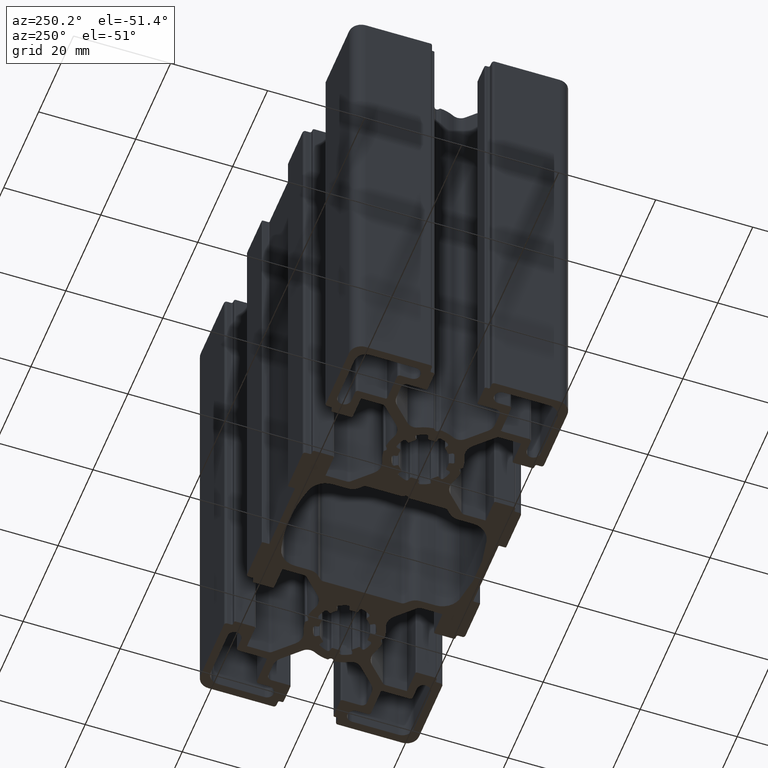
[diagram: clean part render]
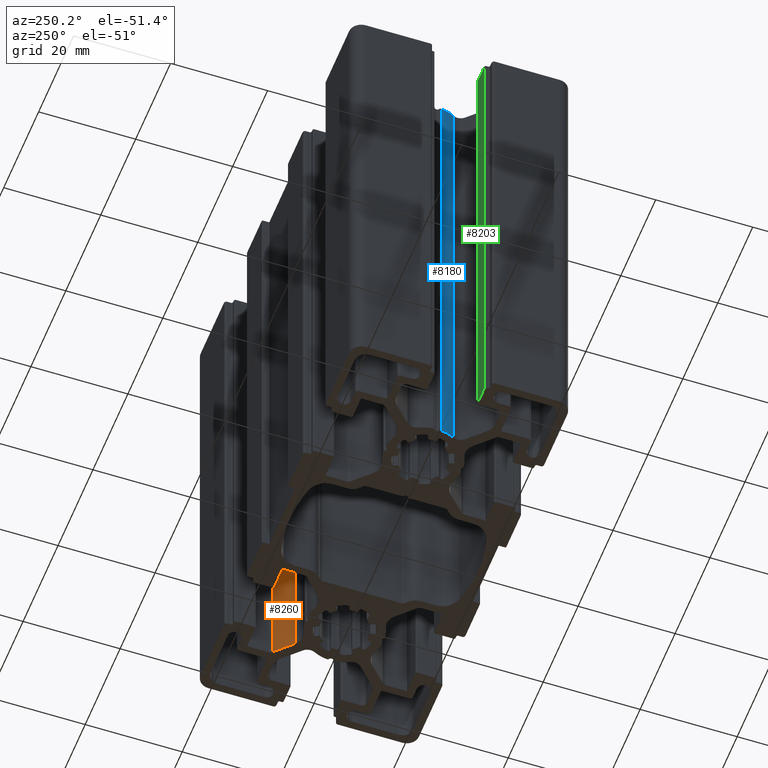
[diagram: same view with three faces highlighted in distinct colors, each labeled with its STEP entity id]
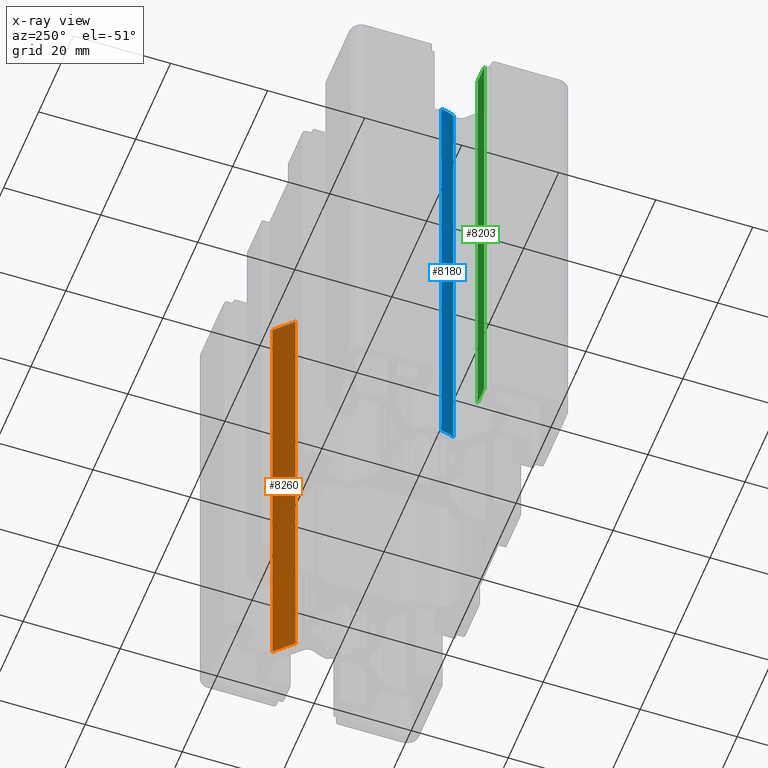
[diagram: x-ray of the same camera — body ghosted, the three highlighted faces saturated]
A machine part, auxiliary view with three faces highlighted in distinct colors.
The next image is the same camera in x-ray (body ghosted, the three faces saturated) — at least one of them is partly hidden behind the body in this view.
Their STEP definitions:

[orange] entity #8260 — the highlighted planar face has unit normal (0.7071, -0.7071, 0).
#1125=FACE_OUTER_BOUND('',#1547,.T.);
#1547=EDGE_LOOP('',(#6550,#6551,#6552,#6553));
#2245=LINE('',#13891,#2991);
#2246=LINE('',#13895,#2992);
#2247=LINE('',#13897,#2993);
#2248=LINE('',#13898,#2994);
#2991=VECTOR('',#11324,100.);
#2992=VECTOR('',#11329,4.96882945190269);
#2993=VECTOR('',#11330,100.);
#2994=VECTOR('',#11331,4.96882945190269);
#3816=VERTEX_POINT('',#13888);
#3817=VERTEX_POINT('',#13890);
#3818=VERTEX_POINT('',#13894);
#3819=VERTEX_POINT('',#13896);
#4972=EDGE_CURVE('',#3817,#3816,#2245,.T.);
#4974=EDGE_CURVE('',#3818,#3816,#2246,.T.);
#4975=EDGE_CURVE('',#3819,#3818,#2247,.T.);
#4976=EDGE_CURVE('',#3817,#3819,#2248,.T.);
#6550=ORIENTED_EDGE('',*,*,#4974,.F.);
#6551=ORIENTED_EDGE('',*,*,#4975,.F.);
#6552=ORIENTED_EDGE('',*,*,#4976,.F.);
#6553=ORIENTED_EDGE('',*,*,#4972,.T.);
#7897=PLANE('',#9080);
#8260=ADVANCED_FACE('',(#1125),#7897,.F.);
#9080=AXIS2_PLACEMENT_3D('',#13893,#11327,#11328);
#11324=DIRECTION('',(0.,0.,1.));
#11327=DIRECTION('center_axis',(0.707106781186549,-0.707106781186546,0.));
#11328=DIRECTION('ref_axis',(0.707106781186546,0.707106781186549,0.));
#11329=DIRECTION('',(-0.707106781186546,-0.707106781186549,0.));
#11330=DIRECTION('',(0.,0.,1.));
#11331=DIRECTION('',(0.707106781186546,0.707106781186549,0.));
#13888=CARTESIAN_POINT('',(28.8436155328533,7.88506667469979,100.));
#13890=CARTESIAN_POINT('',(28.8436155328533,7.88506667469979,0.));
#13891=CARTESIAN_POINT('',(28.8436155328533,7.88506667469979,0.));
#13893=CARTESIAN_POINT('Origin',(28.8436155328533,7.88506667469979,0.));
#13894=CARTESIAN_POINT('',(32.3571085328531,11.3985596746996,100.));
#13895=CARTESIAN_POINT('',(19.6614449809651,-1.2971038771885,100.));
#13896=CARTESIAN_POINT('',(32.3571085328531,11.3985596746996,0.));
#13897=CARTESIAN_POINT('',(32.3571085328531,11.3985596746996,0.));
#13898=CARTESIAN_POINT('',(19.6614449809651,-1.2971038771885,0.));

[blue] entity #8180 — the highlighted cylindrical surface (partial cylindrical patch) has radius 8 mm, axis along (0, 0, 1).
#327=CIRCLE('',#8903,8.);
#328=CIRCLE('',#8904,8.);
#692=CYLINDRICAL_SURFACE('',#8902,8.);
#1045=FACE_OUTER_BOUND('',#1467,.T.);
#1467=EDGE_LOOP('',(#6230,#6231,#6232,#6233));
#2100=LINE('',#13402,#2846);
#2101=LINE('',#13408,#2847);
#2846=VECTOR('',#10823,100.);
#2847=VECTOR('',#10830,100.);
#3650=VERTEX_POINT('',#13399);
#3651=VERTEX_POINT('',#13401);
#3652=VERTEX_POINT('',#13405);
#3653=VERTEX_POINT('',#13407);
#4729=EDGE_CURVE('',#3651,#3650,#2100,.T.);
#4731=EDGE_CURVE('',#3652,#3650,#327,.T.);
#4732=EDGE_CURVE('',#3653,#3652,#2101,.T.);
#4733=EDGE_CURVE('',#3651,#3653,#328,.T.);
#6230=ORIENTED_EDGE('',*,*,#4731,.F.);
#6231=ORIENTED_EDGE('',*,*,#4732,.F.);
#6232=ORIENTED_EDGE('',*,*,#4733,.F.);
#6233=ORIENTED_EDGE('',*,*,#4729,.T.);
#8180=ADVANCED_FACE('',(#1045),#692,.T.);
#8902=AXIS2_PLACEMENT_3D('',#13404,#10826,#10827);
#8903=AXIS2_PLACEMENT_3D('',#13406,#10828,#10829);
#8904=AXIS2_PLACEMENT_3D('',#13409,#10831,#10832);
#10823=DIRECTION('',(0.,0.,1.));
#10826=DIRECTION('center_axis',(0.,0.,1.));
#10827=DIRECTION('ref_axis',(0.994654605649788,0.103258004337024,0.));
#10828=DIRECTION('center_axis',(0.,0.,1.));
#10829=DIRECTION('ref_axis',(0.994654605649788,0.103258004337024,0.));
#10830=DIRECTION('',(0.,0.,1.));
#10831=DIRECTION('center_axis',(0.,0.,-1.));
#10832=DIRECTION('ref_axis',(0.994654605649788,0.103258004337024,0.));
#13399=CARTESIAN_POINT('',(-29.6318083593139,-3.62454200659333,100.));
#13401=CARTESIAN_POINT('',(-29.6318083593139,-3.62454200659333,0.));
#13402=CARTESIAN_POINT('',(-29.6318083593139,-3.62454200659333,0.));
#13404=CARTESIAN_POINT('Origin',(-22.4999994754484,-3.74329118812966E-7,
0.));
#13405=CARTESIAN_POINT('',(-30.4572363206467,-0.826064409025307,100.));
#13406=CARTESIAN_POINT('Origin',(-22.4999994754484,-3.74329118812966E-7,
100.));
#13407=CARTESIAN_POINT('',(-30.4572363206467,-0.826064409025307,0.));
#13408=CARTESIAN_POINT('',(-30.4572363206467,-0.826064409025307,0.));
#13409=CARTESIAN_POINT('Origin',(-22.4999994754484,-3.74329118812966E-7,
0.));

[green] entity #8203 — the highlighted planar face has unit normal (0, -1, 0).
#1068=FACE_OUTER_BOUND('',#1490,.T.);
#1490=EDGE_LOOP('',(#6322,#6323,#6324,#6325));
#2140=LINE('',#13543,#2886);
#2141=LINE('',#13547,#2887);
#2142=LINE('',#13549,#2888);
#2143=LINE('',#13550,#2889);
#2886=VECTOR('',#10969,100.);
#2887=VECTOR('',#10974,3.79999999999995);
#2888=VECTOR('',#10975,100.);
#2889=VECTOR('',#10976,3.79999999999995);
#3698=VERTEX_POINT('',#13540);
#3699=VERTEX_POINT('',#13542);
#3700=VERTEX_POINT('',#13546);
#3701=VERTEX_POINT('',#13548);
#4799=EDGE_CURVE('',#3699,#3698,#2140,.T.);
#4801=EDGE_CURVE('',#3700,#3698,#2141,.T.);
#4802=EDGE_CURVE('',#3701,#3700,#2142,.T.);
#4803=EDGE_CURVE('',#3699,#3701,#2143,.T.);
#6322=ORIENTED_EDGE('',*,*,#4801,.F.);
#6323=ORIENTED_EDGE('',*,*,#4802,.F.);
#6324=ORIENTED_EDGE('',*,*,#4803,.F.);
#6325=ORIENTED_EDGE('',*,*,#4799,.T.);
#7874=PLANE('',#8955);
#8203=ADVANCED_FACE('',(#1068),#7874,.F.);
#8955=AXIS2_PLACEMENT_3D('',#13545,#10972,#10973);
#10969=DIRECTION('',(0.,0.,1.));
#10972=DIRECTION('center_axis',(0.,-1.,0.));
#10973=DIRECTION('ref_axis',(1.,0.,0.));
#10974=DIRECTION('',(-1.,0.,0.));
#10975=DIRECTION('',(0.,0.,1.));
#10976=DIRECTION('',(1.,0.,0.));
#13540=CARTESIAN_POINT('',(-43.1000000000001,-5.14999999999987,100.));
#13542=CARTESIAN_POINT('',(-43.1000000000001,-5.14999999999987,0.));
#13543=CARTESIAN_POINT('',(-43.1000000000001,-5.14999999999987,0.));
#13545=CARTESIAN_POINT('Origin',(-43.1000000000001,-5.14999999999987,0.));
#13546=CARTESIAN_POINT('',(-39.3000000000001,-5.14999999999987,100.));
#13547=CARTESIAN_POINT('',(-21.55,-5.14999999999987,100.));
#13548=CARTESIAN_POINT('',(-39.3000000000001,-5.14999999999987,0.));
#13549=CARTESIAN_POINT('',(-39.3000000000001,-5.14999999999987,0.));
#13550=CARTESIAN_POINT('',(-21.55,-5.14999999999987,0.));